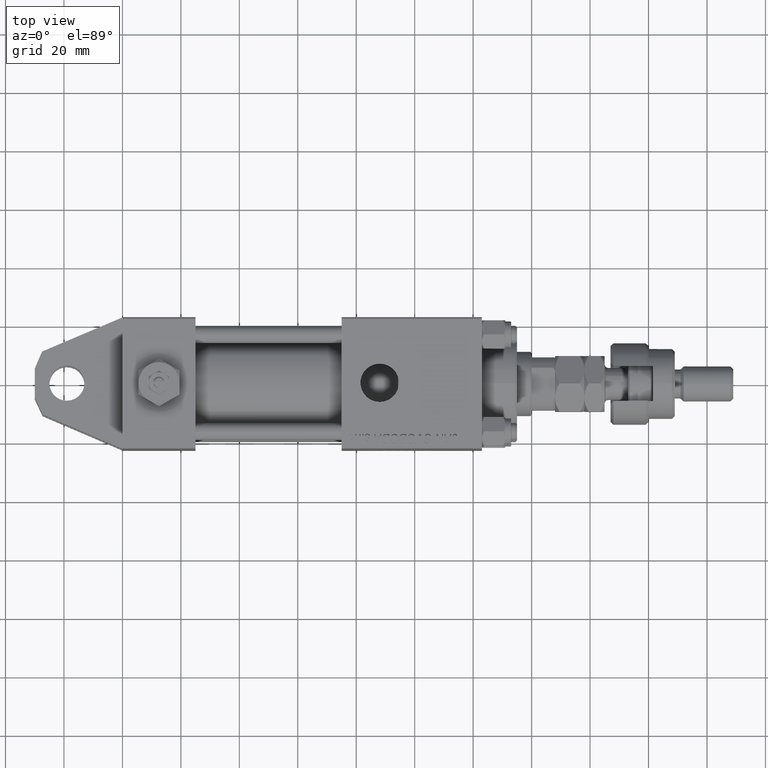
[diagram: clean part render]
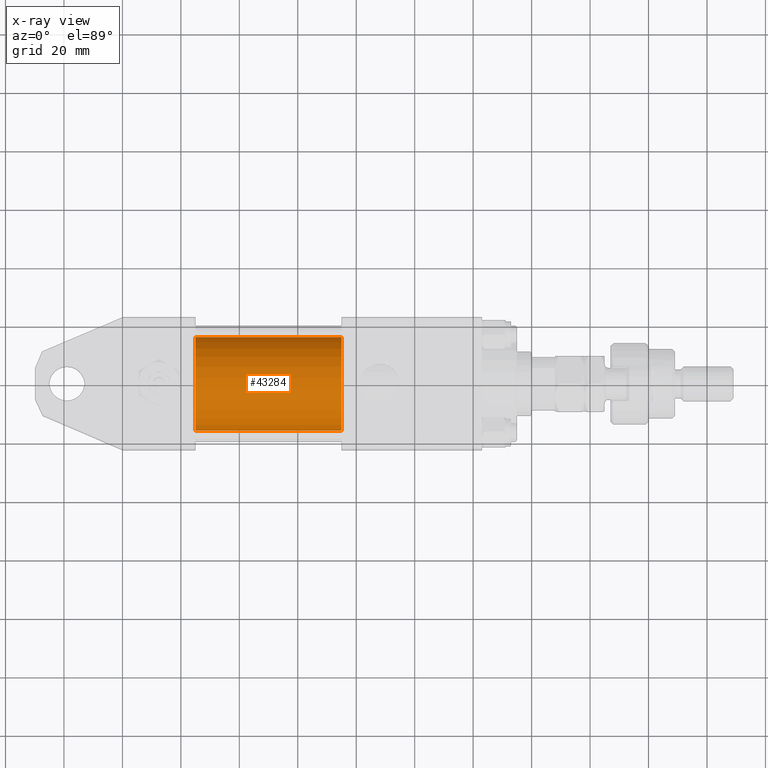
[diagram: x-ray — body ghosted, one internal face saturated and labeled with its STEP entity id]
A machine part, top view, then the same camera in x-ray: the body is ghosted and one INTERNAL B-rep face — a face not visible from any outside direction — is saturated and labeled: STEP entity #43284.
In plain terms, the highlighted cylindrical surface (partial cylindrical patch) has radius 16 mm, axis along (-1, -0, 0).
Its self-contained STEP definition (entity closure, byte-faithful):
#2107 = VECTOR ( 'NONE', #25047, 1000.000000000000000 ) ;
#2673 = DIRECTION ( 'NONE',  ( 1.000000000000000000, 0.000000000000000000, 0.000000000000000000 ) ) ;
#2795 = DIRECTION ( 'NONE',  ( -1.000000000000000000, -0.000000000000000000, -0.000000000000000000 ) ) ;
#6728 = AXIS2_PLACEMENT_3D ( 'NONE', #27232, #28041, #23101 ) ;
#8222 = CARTESIAN_POINT ( 'NONE',  ( 75.00000000000001421, -1.510012073317849255E-15, -16.00000000000000000 ) ) ;
#9383 = ORIENTED_EDGE ( 'NONE', *, *, #29570, .T. ) ;
#11063 = FACE_OUTER_BOUND ( 'NONE', #12659, .T. ) ;
#11331 = DIRECTION ( 'NONE',  ( 0.000000000000000000, 0.000000000000000000, 1.000000000000000000 ) ) ;
#11934 = CARTESIAN_POINT ( 'NONE',  ( 25.00000000000000000, -3.469446951953614189E-15, 16.00000000000000000 ) ) ;
#12659 = EDGE_LOOP ( 'NONE', ( #48252, #9383, #32854, #31831 ) ) ;
#13068 = CARTESIAN_POINT ( 'NONE',  ( 25.00000000000000000, -1.510012073317849255E-15, -16.00000000000000000 ) ) ;
#16620 = LINE ( 'NONE', #20484, #35265 ) ;
#16949 = VERTEX_POINT ( 'NONE', #43778 ) ;
#18698 = CARTESIAN_POINT ( 'NONE',  ( 25.00000000000000000, -3.469446951953614189E-15, 0.000000000000000000 ) ) ;
#18967 = DIRECTION ( 'NONE',  ( 0.000000000000000000, 0.000000000000000000, -1.000000000000000000 ) ) ;
#19263 = VERTEX_POINT ( 'NONE', #44641 ) ;
#20484 = CARTESIAN_POINT ( 'NONE',  ( 75.00000000000001421, -3.469446951953614189E-15, 16.00000000000000000 ) ) ;
#23101 = DIRECTION ( 'NONE',  ( 0.000000000000000000, 0.000000000000000000, -1.000000000000000000 ) ) ;
#24615 = DIRECTION ( 'NONE',  ( -1.000000000000000000, -0.000000000000000000, -0.000000000000000000 ) ) ;
#25047 = DIRECTION ( 'NONE',  ( -1.000000000000000000, -0.000000000000000000, -0.000000000000000000 ) ) ;
#26109 = CIRCLE ( 'NONE', #6728, 16.00000000000000000 ) ;
#27232 = CARTESIAN_POINT ( 'NONE',  ( 75.00000000000001421, -3.469446951953614189E-15, 0.000000000000000000 ) ) ;
#27895 = CYLINDRICAL_SURFACE ( 'NONE', #43813, 16.00000000000000000 ) ;
#28041 = DIRECTION ( 'NONE',  ( 1.000000000000000000, 0.000000000000000000, 0.000000000000000000 ) ) ;
#28092 = CIRCLE ( 'NONE', #35995, 16.00000000000000000 ) ;
#28914 = LINE ( 'NONE', #8222, #2107 ) ;
#29570 = EDGE_CURVE ( 'NONE', #16949, #35721, #28914, .T. ) ;
#31831 = ORIENTED_EDGE ( 'NONE', *, *, #48363, .F. ) ;
#32854 = ORIENTED_EDGE ( 'NONE', *, *, #45316, .F. ) ;
#35265 = VECTOR ( 'NONE', #24615, 1000.000000000000000 ) ;
#35721 = VERTEX_POINT ( 'NONE', #13068 ) ;
#35995 = AXIS2_PLACEMENT_3D ( 'NONE', #18698, #2673, #18967 ) ;
#38744 = EDGE_CURVE ( 'NONE', #19263, #16949, #26109, .T. ) ;
#40576 = CARTESIAN_POINT ( 'NONE',  ( 75.00000000000001421, -3.469446951953614189E-15, 0.000000000000000000 ) ) ;
#43284 = ADVANCED_FACE ( 'NONE', ( #11063 ), #27895, .F. ) ;
#43778 = CARTESIAN_POINT ( 'NONE',  ( 75.00000000000001421, -1.510012073317849255E-15, -16.00000000000000000 ) ) ;
#43813 = AXIS2_PLACEMENT_3D ( 'NONE', #40576, #2795, #11331 ) ;
#44641 = CARTESIAN_POINT ( 'NONE',  ( 75.00000000000001421, -3.469446951953614189E-15, 16.00000000000000000 ) ) ;
#45316 = EDGE_CURVE ( 'NONE', #53765, #35721, #28092, .T. ) ;
#48252 = ORIENTED_EDGE ( 'NONE', *, *, #38744, .T. ) ;
#48363 = EDGE_CURVE ( 'NONE', #19263, #53765, #16620, .T. ) ;
#53765 = VERTEX_POINT ( 'NONE', #11934 ) ;